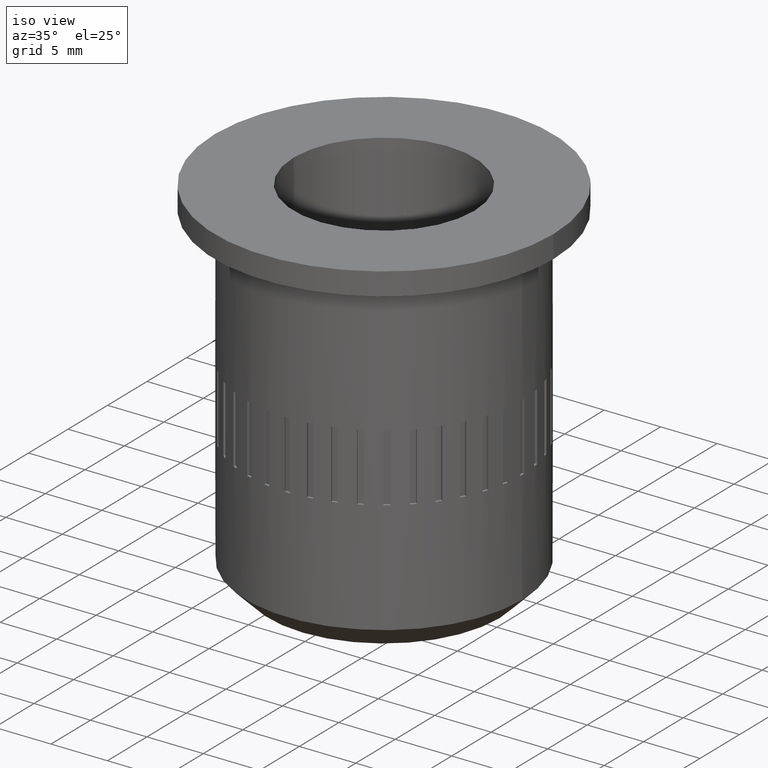
[diagram: clean part render]
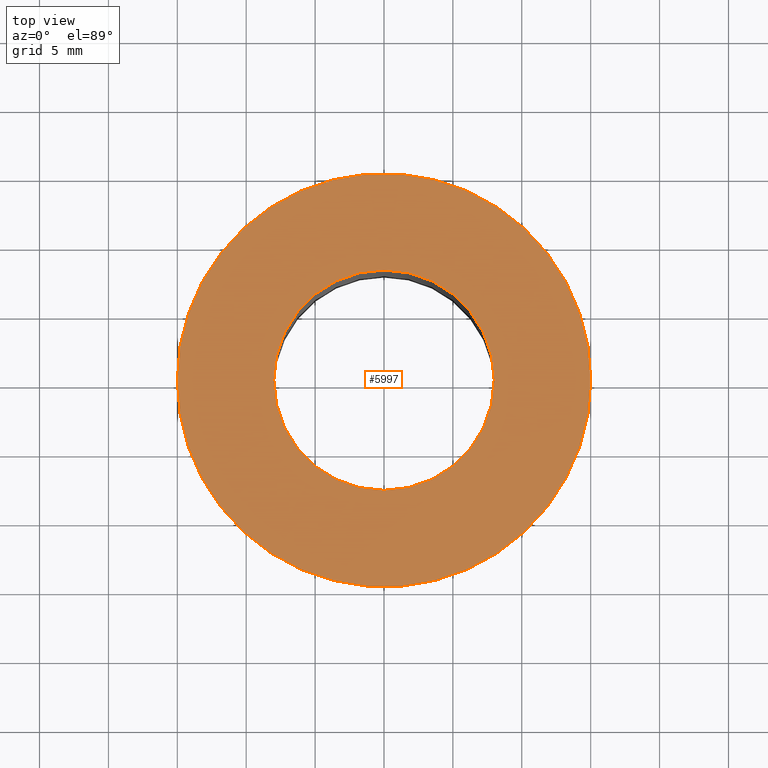
[diagram: tour spotlight — one face highlighted and labeled with its STEP entity id]
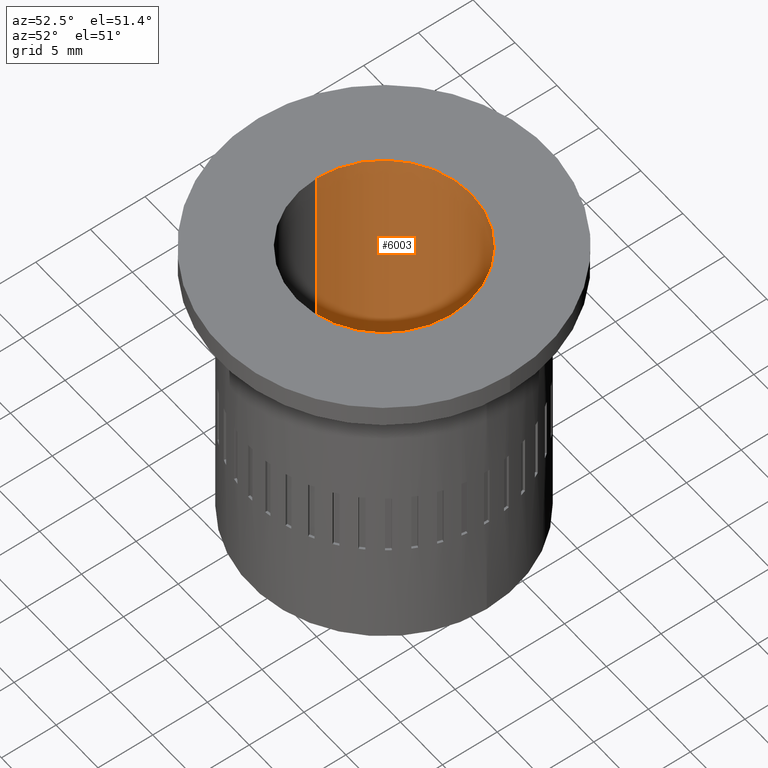
[diagram: tour spotlight — one face highlighted and labeled with its STEP entity id]
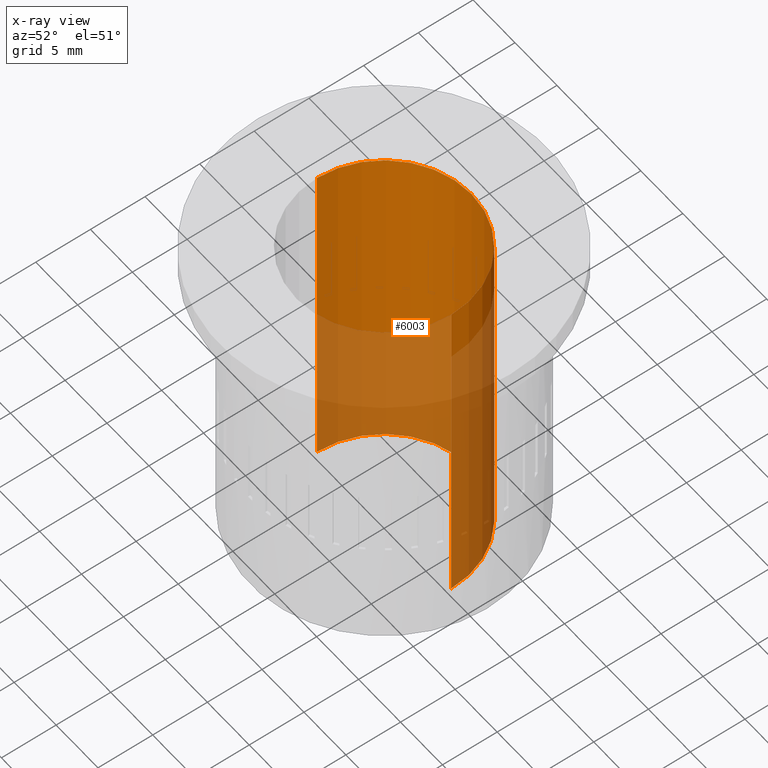
[diagram: x-ray of the same camera — body ghosted, this tour face saturated]
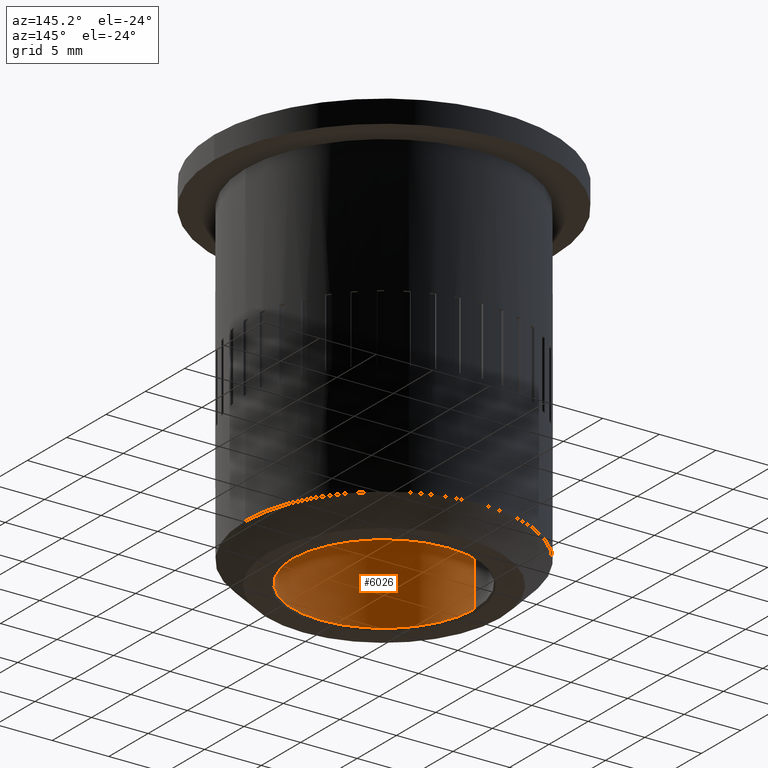
[diagram: tour spotlight — one face highlighted and labeled with its STEP entity id]
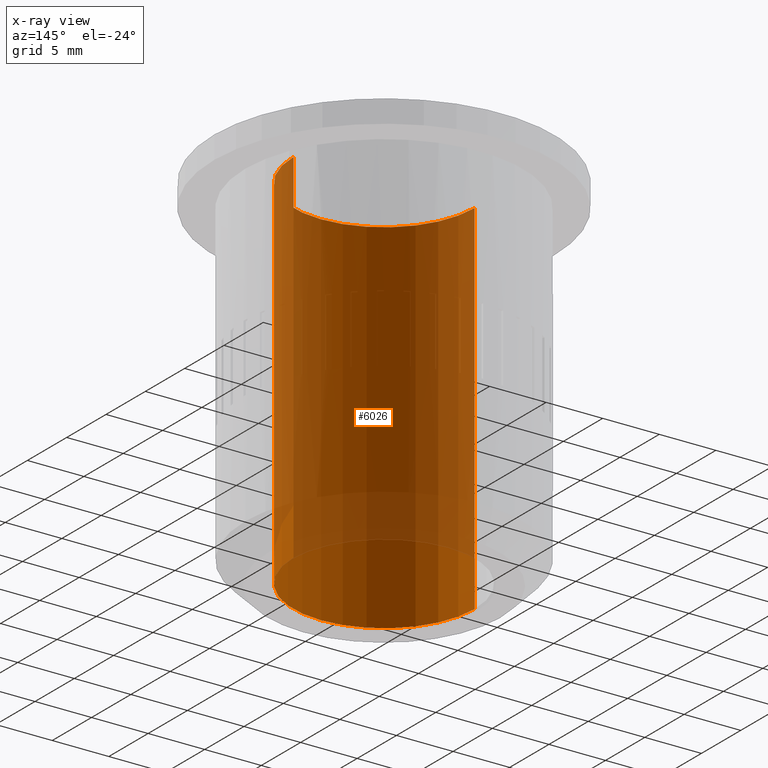
[diagram: x-ray of the same camera — body ghosted, this tour face saturated]
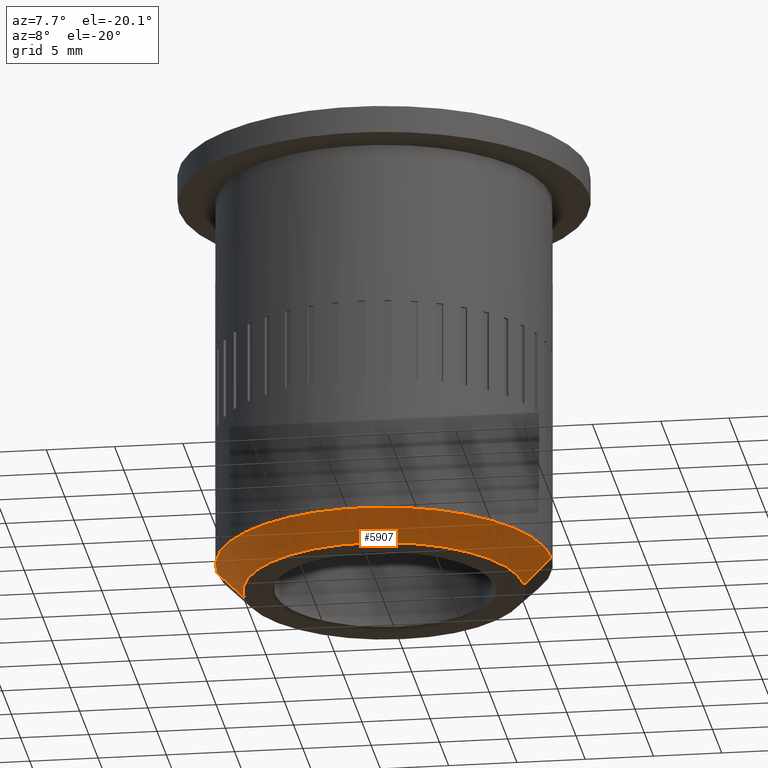
[diagram: tour spotlight — one face highlighted and labeled with its STEP entity id]
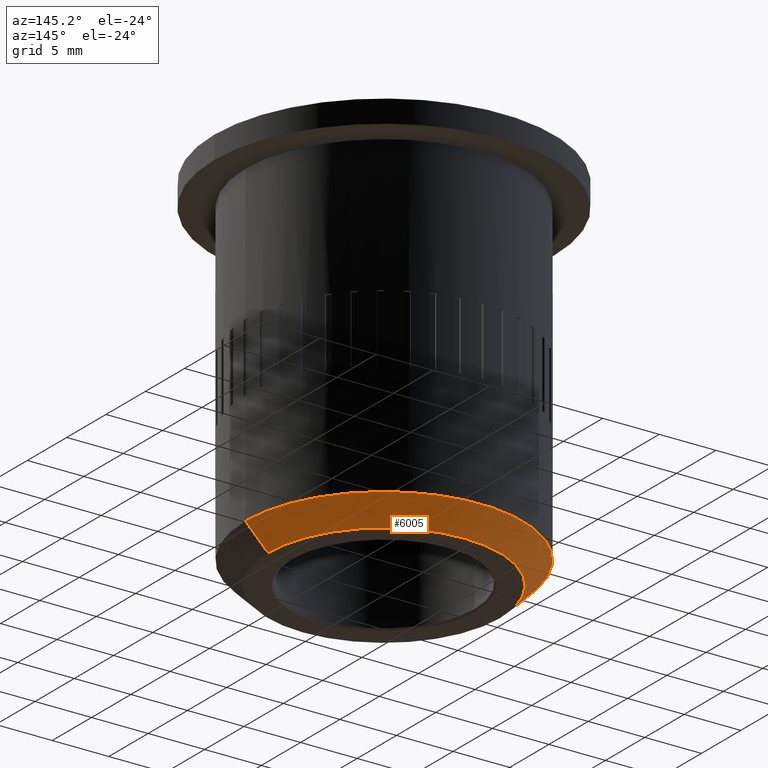
[diagram: tour spotlight — one face highlighted and labeled with its STEP entity id]
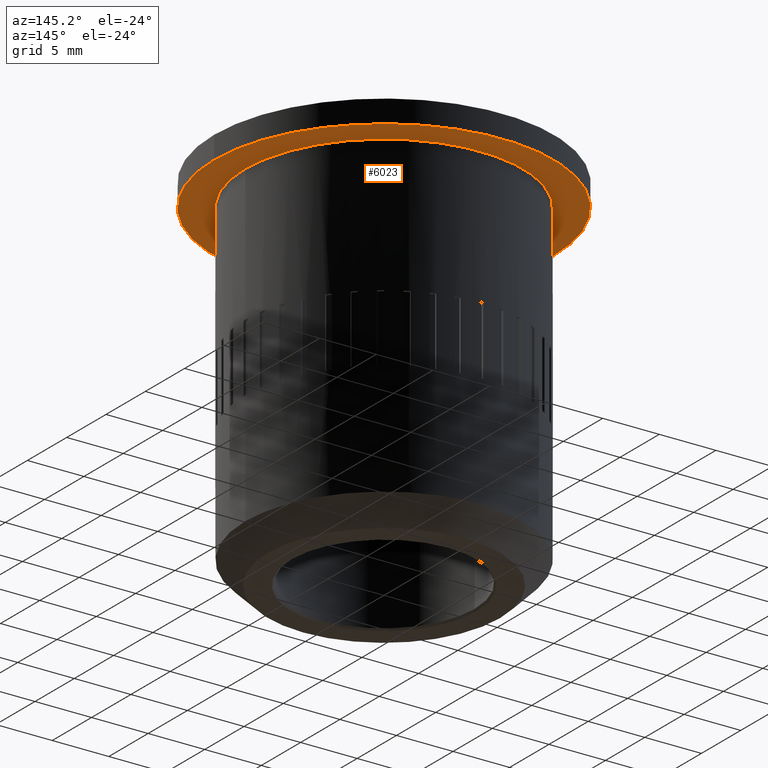
[diagram: tour spotlight — one face highlighted and labeled with its STEP entity id]
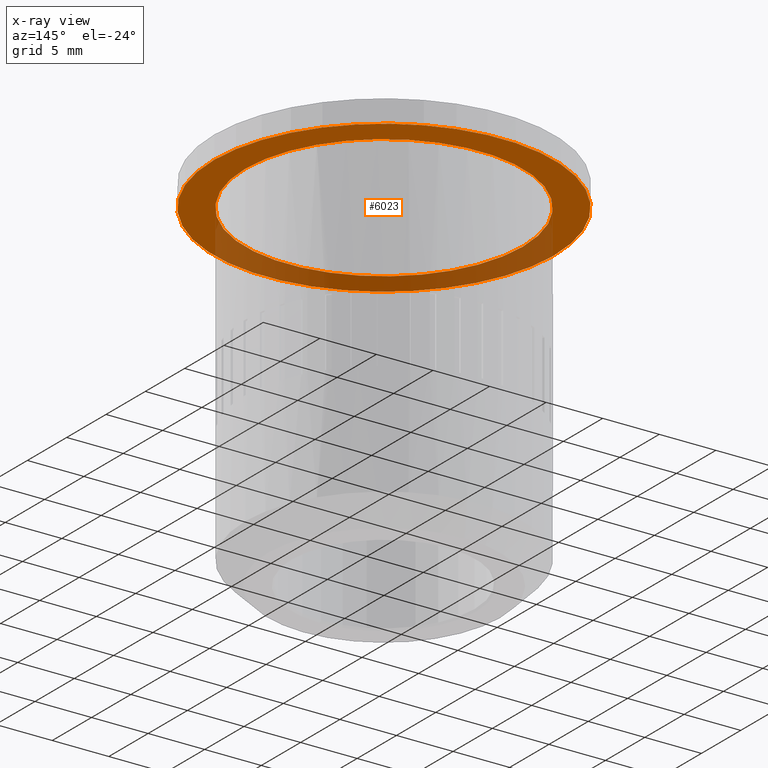
[diagram: x-ray of the same camera — body ghosted, this tour face saturated]
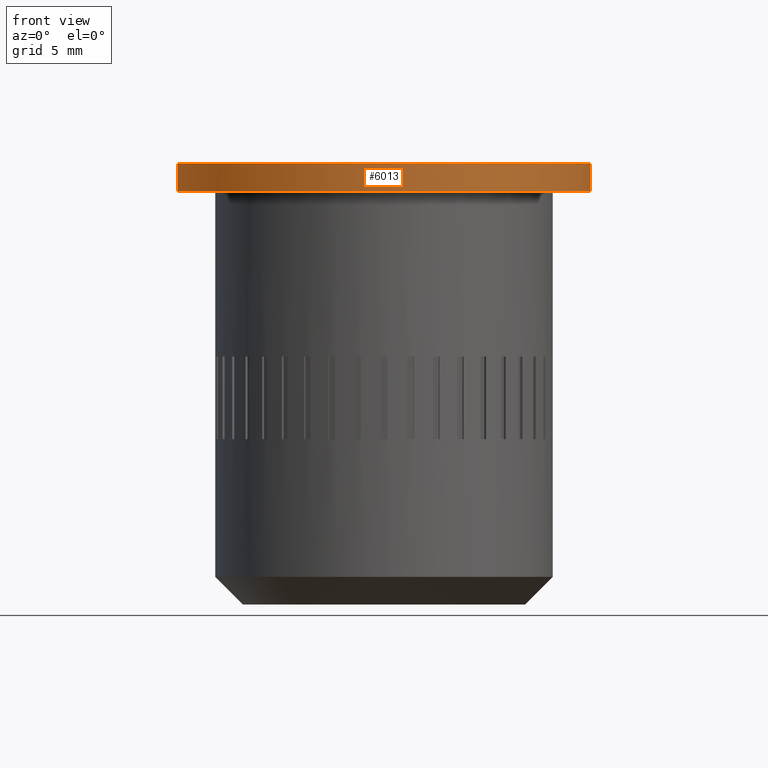
[diagram: tour spotlight — one face highlighted and labeled with its STEP entity id]
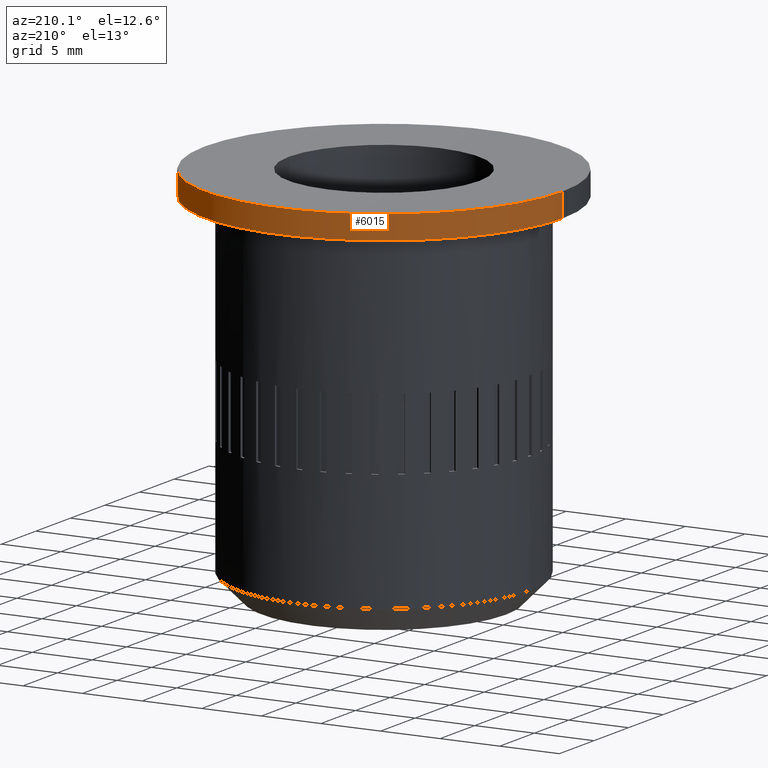
[diagram: tour spotlight — one face highlighted and labeled with its STEP entity id]
A machine part: a face-by-face anatomy tour. The part has 213 B-rep faces; the first image is the clean iso view, then the 8 largest visible faces are spotlighted one at a time (largest first), each with its STEP entity span.

Face 1 — top view, entity #5997. In plain terms, the highlighted planar face has unit normal (0, 0, 1).
Definition (entity closure, byte-faithful):
#10 = EDGE_LOOP ( 'NONE', ( #4042, #4032 ) ) ;
#11 = EDGE_LOOP ( 'NONE', ( #4058, #4044 ) ) ;
#129 = VERTEX_POINT ( 'NONE', #5413 ) ;
#225 = VERTEX_POINT ( 'NONE', #2300 ) ;
#232 = VERTEX_POINT ( 'NONE', #1229 ) ;
#234 = VERTEX_POINT ( 'NONE', #1225 ) ;
#733 = PLANE ( 'NONE',  #3298 ) ;
#734 = CARTESIAN_POINT ( 'NONE',  ( 0.0000000000000000000, 0.0000000000000000000, 32.00000000000000000 ) ) ;
#735 = DIRECTION ( 'NONE',  ( 0.0000000000000000000, 0.0000000000000000000, 1.000000000000000000 ) ) ;
#736 = DIRECTION ( 'NONE',  ( 1.000000000000000000, 0.0000000000000000000, -0.0000000000000000000 ) ) ;
#1225 = CARTESIAN_POINT ( 'NONE',  ( 8.000000000000000000, 9.797174393178825700E-016, 32.00000000000000000 ) ) ;
#1229 = CARTESIAN_POINT ( 'NONE',  ( 15.00000000000000000, 1.836970198721029600E-015, 32.00000000000000000 ) ) ;
#1317 = EDGE_CURVE ( 'NONE', #129, #232, #4931, .T. ) ;
#1532 = CARTESIAN_POINT ( 'NONE',  ( 0.0000000000000000000, 0.0000000000000000000, 32.00000000000000000 ) ) ;
#1533 = DIRECTION ( 'NONE',  ( 0.0000000000000000000, 0.0000000000000000000, -1.000000000000000000 ) ) ;
#1534 = DIRECTION ( 'NONE',  ( -1.000000000000000000, 0.0000000000000000000, 0.0000000000000000000 ) ) ;
#2014 = CIRCLE ( 'NONE', #2777, 8.000000000000000000 ) ;
#2300 = CARTESIAN_POINT ( 'NONE',  ( -8.000000000000000000, 0.0000000000000000000, 32.00000000000000000 ) ) ;
#2452 = CIRCLE ( 'NONE', #2760, 15.00000000000000000 ) ;
#2616 = EDGE_CURVE ( 'NONE', #234, #225, #4815, .T. ) ;
#2658 = EDGE_CURVE ( 'NONE', #232, #129, #2452, .T. ) ;
#2708 = AXIS2_PLACEMENT_3D ( 'NONE', #5165, #5166, #5167 ) ;
#2738 = AXIS2_PLACEMENT_3D ( 'NONE', #5721, #5722, #5723 ) ;
#2760 = AXIS2_PLACEMENT_3D ( 'NONE', #5292, #5293, #5294 ) ;
#2777 = AXIS2_PLACEMENT_3D ( 'NONE', #1532, #1533, #1534 ) ;
#3159 = FACE_BOUND ( 'NONE', #11, .T. ) ;
#3160 = FACE_OUTER_BOUND ( 'NONE', #10, .T. ) ;
#3298 = AXIS2_PLACEMENT_3D ( 'NONE', #734, #735, #736 ) ;
#4032 = ORIENTED_EDGE ( 'NONE', *, *, #2658, .T. ) ;
#4042 = ORIENTED_EDGE ( 'NONE', *, *, #1317, .T. ) ;
#4044 = ORIENTED_EDGE ( 'NONE', *, *, #2616, .T. ) ;
#4058 = ORIENTED_EDGE ( 'NONE', *, *, #5017, .T. ) ;
#4815 = CIRCLE ( 'NONE', #2738, 8.000000000000000000 ) ;
#4931 = CIRCLE ( 'NONE', #2708, 15.00000000000000000 ) ;
#5017 = EDGE_CURVE ( 'NONE', #225, #234, #2014, .T. ) ;
#5165 = CARTESIAN_POINT ( 'NONE',  ( 0.0000000000000000000, 0.0000000000000000000, 32.00000000000000000 ) ) ;
#5166 = DIRECTION ( 'NONE',  ( 0.0000000000000000000, 0.0000000000000000000, 1.000000000000000000 ) ) ;
#5167 = DIRECTION ( 'NONE',  ( 1.000000000000000000, 0.0000000000000000000, 0.0000000000000000000 ) ) ;
#5292 = CARTESIAN_POINT ( 'NONE',  ( 0.0000000000000000000, 0.0000000000000000000, 32.00000000000000000 ) ) ;
#5293 = DIRECTION ( 'NONE',  ( 0.0000000000000000000, 0.0000000000000000000, 1.000000000000000000 ) ) ;
#5294 = DIRECTION ( 'NONE',  ( 1.000000000000000000, 0.0000000000000000000, 0.0000000000000000000 ) ) ;
#5413 = CARTESIAN_POINT ( 'NONE',  ( -15.00000000000000000, 0.0000000000000000000, 32.00000000000000000 ) ) ;
#5721 = CARTESIAN_POINT ( 'NONE',  ( 0.0000000000000000000, 0.0000000000000000000, 32.00000000000000000 ) ) ;
#5722 = DIRECTION ( 'NONE',  ( 0.0000000000000000000, 0.0000000000000000000, -1.000000000000000000 ) ) ;
#5723 = DIRECTION ( 'NONE',  ( -1.000000000000000000, 0.0000000000000000000, 0.0000000000000000000 ) ) ;
#5997 = ADVANCED_FACE ( 'NONE', ( #3159, #3160 ), #733, .T. ) ;

Face 2 — auxiliary view, entity #6003. An x-ray twin of the same camera follows (body ghosted, this face saturated) — the face is partly hidden behind the body. In plain terms, the highlighted cylindrical surface (partial cylindrical patch) has radius 8 mm, axis along (-0, -0, -1).
Definition (entity closure, byte-faithful):
#14 = EDGE_LOOP ( 'NONE', ( #4059, #4025, #4021, #4023 ) ) ;
#195 = VERTEX_POINT ( 'NONE', #2283 ) ;
#225 = VERTEX_POINT ( 'NONE', #2300 ) ;
#234 = VERTEX_POINT ( 'NONE', #1225 ) ;
#246 = VERTEX_POINT ( 'NONE', #1250 ) ;
#757 = CARTESIAN_POINT ( 'NONE',  ( 0.0000000000000000000, 0.0000000000000000000, 32.00000000000000000 ) ) ;
#758 = DIRECTION ( 'NONE',  ( -0.0000000000000000000, -0.0000000000000000000, -1.000000000000000000 ) ) ;
#759 = DIRECTION ( 'NONE',  ( -1.000000000000000000, 0.0000000000000000000, 0.0000000000000000000 ) ) ;
#1225 = CARTESIAN_POINT ( 'NONE',  ( 8.000000000000000000, 9.797174393178825700E-016, 32.00000000000000000 ) ) ;
#1250 = CARTESIAN_POINT ( 'NONE',  ( 8.000000000000000000, 9.797174393178825700E-016, 0.1499999999999973600 ) ) ;
#1333 = EDGE_CURVE ( 'NONE', #195, #246, #4962, .T. ) ;
#1532 = CARTESIAN_POINT ( 'NONE',  ( 0.0000000000000000000, 0.0000000000000000000, 32.00000000000000000 ) ) ;
#1533 = DIRECTION ( 'NONE',  ( 0.0000000000000000000, 0.0000000000000000000, -1.000000000000000000 ) ) ;
#1534 = DIRECTION ( 'NONE',  ( -1.000000000000000000, 0.0000000000000000000, 0.0000000000000000000 ) ) ;
#2014 = CIRCLE ( 'NONE', #2777, 8.000000000000000000 ) ;
#2283 = CARTESIAN_POINT ( 'NONE',  ( -8.000000000000000000, 0.0000000000000000000, 0.1499999999999973600 ) ) ;
#2300 = CARTESIAN_POINT ( 'NONE',  ( -8.000000000000000000, 0.0000000000000000000, 32.00000000000000000 ) ) ;
#2440 = LINE ( 'NONE', #5810, #2441 ) ;
#2441 = VECTOR ( 'NONE', #5811, 1000.000000000000000 ) ;
#2454 = LINE ( 'NONE', #5297, #2455 ) ;
#2455 = VECTOR ( 'NONE', #5298, 1000.000000000000000 ) ;
#2651 = EDGE_CURVE ( 'NONE', #234, #246, #2440, .T. ) ;
#2660 = EDGE_CURVE ( 'NONE', #225, #195, #2454, .T. ) ;
#2709 = AXIS2_PLACEMENT_3D ( 'NONE', #5198, #5199, #5200 ) ;
#2777 = AXIS2_PLACEMENT_3D ( 'NONE', #1532, #1533, #1534 ) ;
#3166 = FACE_OUTER_BOUND ( 'NONE', #14, .T. ) ;
#3167 = CYLINDRICAL_SURFACE ( 'NONE', #3304, 8.000000000000000000 ) ;
#3304 = AXIS2_PLACEMENT_3D ( 'NONE', #757, #758, #759 ) ;
#4021 = ORIENTED_EDGE ( 'NONE', *, *, #2660, .T. ) ;
#4023 = ORIENTED_EDGE ( 'NONE', *, *, #1333, .T. ) ;
#4025 = ORIENTED_EDGE ( 'NONE', *, *, #5017, .F. ) ;
#4059 = ORIENTED_EDGE ( 'NONE', *, *, #2651, .F. ) ;
#4962 = CIRCLE ( 'NONE', #2709, 8.000000000000000000 ) ;
#5017 = EDGE_CURVE ( 'NONE', #225, #234, #2014, .T. ) ;
#5198 = CARTESIAN_POINT ( 'NONE',  ( 0.0000000000000000000, 0.0000000000000000000, 0.1499999999999973600 ) ) ;
#5199 = DIRECTION ( 'NONE',  ( 0.0000000000000000000, 0.0000000000000000000, -1.000000000000000000 ) ) ;
#5200 = DIRECTION ( 'NONE',  ( 1.000000000000000000, 0.0000000000000000000, 0.0000000000000000000 ) ) ;
#5297 = CARTESIAN_POINT ( 'NONE',  ( -8.000000000000000000, 0.0000000000000000000, 32.00000000000000000 ) ) ;
#5298 = DIRECTION ( 'NONE',  ( -0.0000000000000000000, -0.0000000000000000000, -1.000000000000000000 ) ) ;
#5810 = CARTESIAN_POINT ( 'NONE',  ( 8.000000000000000000, 9.797174393178825700E-016, 32.00000000000000000 ) ) ;
#5811 = DIRECTION ( 'NONE',  ( -0.0000000000000000000, -0.0000000000000000000, -1.000000000000000000 ) ) ;
#6003 = ADVANCED_FACE ( 'NONE', ( #3166 ), #3167, .F. ) ;

Face 3 — auxiliary view, entity #6026. An x-ray twin of the same camera follows (body ghosted, this face saturated) — the face is partly hidden behind the body. In plain terms, the highlighted cylindrical surface (partial cylindrical patch) has radius 8 mm, axis along (-0, -0, -1).
Definition (entity closure, byte-faithful):
#195 = VERTEX_POINT ( 'NONE', #2283 ) ;
#225 = VERTEX_POINT ( 'NONE', #2300 ) ;
#234 = VERTEX_POINT ( 'NONE', #1225 ) ;
#246 = VERTEX_POINT ( 'NONE', #1250 ) ;
#841 = CARTESIAN_POINT ( 'NONE',  ( 0.0000000000000000000, 0.0000000000000000000, 32.00000000000000000 ) ) ;
#842 = DIRECTION ( 'NONE',  ( -0.0000000000000000000, -0.0000000000000000000, -1.000000000000000000 ) ) ;
#843 = DIRECTION ( 'NONE',  ( -1.000000000000000000, 0.0000000000000000000, 0.0000000000000000000 ) ) ;
#978 = FACE_OUTER_BOUND ( 'NONE', #6073, .T. ) ;
#979 = CYLINDRICAL_SURFACE ( 'NONE', #3327, 8.000000000000000000 ) ;
#1225 = CARTESIAN_POINT ( 'NONE',  ( 8.000000000000000000, 9.797174393178825700E-016, 32.00000000000000000 ) ) ;
#1250 = CARTESIAN_POINT ( 'NONE',  ( 8.000000000000000000, 9.797174393178825700E-016, 0.1499999999999973600 ) ) ;
#2096 = CIRCLE ( 'NONE', #2769, 8.000000000000000000 ) ;
#2283 = CARTESIAN_POINT ( 'NONE',  ( -8.000000000000000000, 0.0000000000000000000, 0.1499999999999973600 ) ) ;
#2300 = CARTESIAN_POINT ( 'NONE',  ( -8.000000000000000000, 0.0000000000000000000, 32.00000000000000000 ) ) ;
#2440 = LINE ( 'NONE', #5810, #2441 ) ;
#2441 = VECTOR ( 'NONE', #5811, 1000.000000000000000 ) ;
#2454 = LINE ( 'NONE', #5297, #2455 ) ;
#2455 = VECTOR ( 'NONE', #5298, 1000.000000000000000 ) ;
#2616 = EDGE_CURVE ( 'NONE', #234, #225, #4815, .T. ) ;
#2651 = EDGE_CURVE ( 'NONE', #234, #246, #2440, .T. ) ;
#2660 = EDGE_CURVE ( 'NONE', #225, #195, #2454, .T. ) ;
#2738 = AXIS2_PLACEMENT_3D ( 'NONE', #5721, #5722, #5723 ) ;
#2769 = AXIS2_PLACEMENT_3D ( 'NONE', #6127, #6128, #6129 ) ;
#3327 = AXIS2_PLACEMENT_3D ( 'NONE', #841, #842, #843 ) ;
#3489 = EDGE_CURVE ( 'NONE', #246, #195, #2096, .T. ) ;
#4295 = ORIENTED_EDGE ( 'NONE', *, *, #2660, .F. ) ;
#4296 = ORIENTED_EDGE ( 'NONE', *, *, #3489, .T. ) ;
#4297 = ORIENTED_EDGE ( 'NONE', *, *, #2651, .T. ) ;
#4298 = ORIENTED_EDGE ( 'NONE', *, *, #2616, .F. ) ;
#4815 = CIRCLE ( 'NONE', #2738, 8.000000000000000000 ) ;
#5297 = CARTESIAN_POINT ( 'NONE',  ( -8.000000000000000000, 0.0000000000000000000, 32.00000000000000000 ) ) ;
#5298 = DIRECTION ( 'NONE',  ( -0.0000000000000000000, -0.0000000000000000000, -1.000000000000000000 ) ) ;
#5721 = CARTESIAN_POINT ( 'NONE',  ( 0.0000000000000000000, 0.0000000000000000000, 32.00000000000000000 ) ) ;
#5722 = DIRECTION ( 'NONE',  ( 0.0000000000000000000, 0.0000000000000000000, -1.000000000000000000 ) ) ;
#5723 = DIRECTION ( 'NONE',  ( -1.000000000000000000, 0.0000000000000000000, 0.0000000000000000000 ) ) ;
#5810 = CARTESIAN_POINT ( 'NONE',  ( 8.000000000000000000, 9.797174393178825700E-016, 32.00000000000000000 ) ) ;
#5811 = DIRECTION ( 'NONE',  ( -0.0000000000000000000, -0.0000000000000000000, -1.000000000000000000 ) ) ;
#6026 = ADVANCED_FACE ( 'NONE', ( #978 ), #979, .F. ) ;
#6073 = EDGE_LOOP ( 'NONE', ( #4298, #4297, #4296, #4295 ) ) ;
#6127 = CARTESIAN_POINT ( 'NONE',  ( 0.0000000000000000000, 0.0000000000000000000, 0.1499999999999973600 ) ) ;
#6128 = DIRECTION ( 'NONE',  ( 0.0000000000000000000, 0.0000000000000000000, -1.000000000000000000 ) ) ;
#6129 = DIRECTION ( 'NONE',  ( 1.000000000000000000, 0.0000000000000000000, 0.0000000000000000000 ) ) ;

Face 4 — auxiliary view, entity #5907. In plain terms, the highlighted conical surface has half-angle 45 deg.
Definition (entity closure, byte-faithful):
#163 = VERTEX_POINT ( 'NONE', #2876 ) ;
#193 = VERTEX_POINT ( 'NONE', #2277 ) ;
#222 = VERTEX_POINT ( 'NONE', #2297 ) ;
#223 = VERTEX_POINT ( 'NONE', #2288 ) ;
#932 = EDGE_CURVE ( 'NONE', #163, #223, #4832, .T. ) ;
#1180 = CARTESIAN_POINT ( 'NONE',  ( 0.0000000000000000000, 0.0000000000000000000, 1.999999999999998200 ) ) ;
#1181 = DIRECTION ( 'NONE',  ( -0.0000000000000000000, -0.0000000000000000000, 1.000000000000000000 ) ) ;
#1182 = DIRECTION ( 'NONE',  ( 1.000000000000000000, 0.0000000000000000000, 0.0000000000000000000 ) ) ;
#1491 = CARTESIAN_POINT ( 'NONE',  ( 0.0000000000000000000, 0.0000000000000000000, 0.0000000000000000000 ) ) ;
#1492 = DIRECTION ( 'NONE',  ( -0.0000000000000000000, -0.0000000000000000000, -1.000000000000000000 ) ) ;
#1493 = DIRECTION ( 'NONE',  ( 1.000000000000000000, 0.0000000000000000000, 0.0000000000000000000 ) ) ;
#2162 = CIRCLE ( 'NONE', #2774, 10.24999999999999800 ) ;
#2277 = CARTESIAN_POINT ( 'NONE',  ( -10.24999999999999800, 1.377727649040772400E-015, 0.0000000000000000000 ) ) ;
#2288 = CARTESIAN_POINT ( 'NONE',  ( 12.25000000000000000, 1.500192328955507700E-015, 1.999999999999998200 ) ) ;
#2297 = CARTESIAN_POINT ( 'NONE',  ( 10.24999999999999800, 0.0000000000000000000, 0.0000000000000000000 ) ) ;
#2614 = EDGE_CURVE ( 'NONE', #222, #223, #4810, .T. ) ;
#2615 = EDGE_CURVE ( 'NONE', #193, #163, #4813, .T. ) ;
#2696 = AXIS2_PLACEMENT_3D ( 'NONE', #1180, #1181, #1182 ) ;
#2774 = AXIS2_PLACEMENT_3D ( 'NONE', #1491, #1492, #1493 ) ;
#2876 = CARTESIAN_POINT ( 'NONE',  ( -12.25000000000000000, 0.0000000000000000000, 1.999999999999998200 ) ) ;
#3209 = AXIS2_PLACEMENT_3D ( 'NONE', #4508, #4509, #4510 ) ;
#4104 = EDGE_LOOP ( 'NONE', ( #4229, #4230, #4231, #4232 ) ) ;
#4171 = EDGE_CURVE ( 'NONE', #222, #193, #2162, .T. ) ;
#4229 = ORIENTED_EDGE ( 'NONE', *, *, #2615, .F. ) ;
#4230 = ORIENTED_EDGE ( 'NONE', *, *, #4171, .F. ) ;
#4231 = ORIENTED_EDGE ( 'NONE', *, *, #2614, .T. ) ;
#4232 = ORIENTED_EDGE ( 'NONE', *, *, #932, .F. ) ;
#4508 = CARTESIAN_POINT ( 'NONE',  ( 0.0000000000000000000, 0.0000000000000000000, 1.999999999999998200 ) ) ;
#4509 = DIRECTION ( 'NONE',  ( -0.0000000000000000000, -0.0000000000000000000, 1.000000000000000000 ) ) ;
#4510 = DIRECTION ( 'NONE',  ( 1.000000000000000000, 0.0000000000000000000, 0.0000000000000000000 ) ) ;
#4810 = LINE ( 'NONE', #5717, #4812 ) ;
#4812 = VECTOR ( 'NONE', #5718, 999.9999999999998900 ) ;
#4813 = LINE ( 'NONE', #5719, #4814 ) ;
#4814 = VECTOR ( 'NONE', #5720, 999.9999999999998900 ) ;
#4832 = CIRCLE ( 'NONE', #2696, 12.25000000000000000 ) ;
#5573 = FACE_OUTER_BOUND ( 'NONE', #4104, .T. ) ;
#5574 = CONICAL_SURFACE ( 'NONE', #3209, 12.25000000000000000, 0.7853981633974491700 ) ;
#5717 = CARTESIAN_POINT ( 'NONE',  ( 12.25000000000000000, 0.0000000000000000000, 1.999999999999998200 ) ) ;
#5718 = DIRECTION ( 'NONE',  ( 0.7071067811865482400, 0.0000000000000000000, 0.7071067811865469100 ) ) ;
#5719 = CARTESIAN_POINT ( 'NONE',  ( -12.25000000000000000, 1.500192328955507700E-015, 1.999999999999998200 ) ) ;
#5720 = DIRECTION ( 'NONE',  ( -0.7071067811865482400, 8.659560562354942700E-017, 0.7071067811865469100 ) ) ;
#5907 = ADVANCED_FACE ( 'NONE', ( #5573 ), #5574, .T. ) ;

Face 5 — auxiliary view, entity #6005. In plain terms, the highlighted conical surface has half-angle 45 deg.
Definition (entity closure, byte-faithful):
#163 = VERTEX_POINT ( 'NONE', #2876 ) ;
#193 = VERTEX_POINT ( 'NONE', #2277 ) ;
#222 = VERTEX_POINT ( 'NONE', #2297 ) ;
#223 = VERTEX_POINT ( 'NONE', #2288 ) ;
#405 = EDGE_LOOP ( 'NONE', ( #2498, #4305, #4304, #4303 ) ) ;
#542 = CARTESIAN_POINT ( 'NONE',  ( 0.0000000000000000000, 0.0000000000000000000, 1.999999999999998200 ) ) ;
#543 = DIRECTION ( 'NONE',  ( -0.0000000000000000000, -0.0000000000000000000, 1.000000000000000000 ) ) ;
#544 = DIRECTION ( 'NONE',  ( 1.000000000000000000, 0.0000000000000000000, 0.0000000000000000000 ) ) ;
#764 = CARTESIAN_POINT ( 'NONE',  ( 0.0000000000000000000, 0.0000000000000000000, 1.999999999999998200 ) ) ;
#765 = DIRECTION ( 'NONE',  ( -0.0000000000000000000, -0.0000000000000000000, 1.000000000000000000 ) ) ;
#766 = DIRECTION ( 'NONE',  ( 1.000000000000000000, 0.0000000000000000000, 0.0000000000000000000 ) ) ;
#2277 = CARTESIAN_POINT ( 'NONE',  ( -10.24999999999999800, 1.377727649040772400E-015, 0.0000000000000000000 ) ) ;
#2288 = CARTESIAN_POINT ( 'NONE',  ( 12.25000000000000000, 1.500192328955507700E-015, 1.999999999999998200 ) ) ;
#2297 = CARTESIAN_POINT ( 'NONE',  ( 10.24999999999999800, 0.0000000000000000000, 0.0000000000000000000 ) ) ;
#2428 = CIRCLE ( 'NONE', #2754, 10.24999999999999800 ) ;
#2498 = ORIENTED_EDGE ( 'NONE', *, *, #2643, .F. ) ;
#2594 = EDGE_CURVE ( 'NONE', #223, #163, #4783, .T. ) ;
#2614 = EDGE_CURVE ( 'NONE', #222, #223, #4810, .T. ) ;
#2615 = EDGE_CURVE ( 'NONE', #193, #163, #4813, .T. ) ;
#2643 = EDGE_CURVE ( 'NONE', #193, #222, #2428, .T. ) ;
#2726 = AXIS2_PLACEMENT_3D ( 'NONE', #542, #543, #544 ) ;
#2754 = AXIS2_PLACEMENT_3D ( 'NONE', #5791, #5792, #5793 ) ;
#2876 = CARTESIAN_POINT ( 'NONE',  ( -12.25000000000000000, 0.0000000000000000000, 1.999999999999998200 ) ) ;
#3169 = FACE_OUTER_BOUND ( 'NONE', #405, .T. ) ;
#3170 = CONICAL_SURFACE ( 'NONE', #3306, 12.25000000000000000, 0.7853981633974491700 ) ;
#3306 = AXIS2_PLACEMENT_3D ( 'NONE', #764, #765, #766 ) ;
#4303 = ORIENTED_EDGE ( 'NONE', *, *, #2614, .F. ) ;
#4304 = ORIENTED_EDGE ( 'NONE', *, *, #2594, .F. ) ;
#4305 = ORIENTED_EDGE ( 'NONE', *, *, #2615, .T. ) ;
#4783 = CIRCLE ( 'NONE', #2726, 12.25000000000000000 ) ;
#4810 = LINE ( 'NONE', #5717, #4812 ) ;
#4812 = VECTOR ( 'NONE', #5718, 999.9999999999998900 ) ;
#4813 = LINE ( 'NONE', #5719, #4814 ) ;
#4814 = VECTOR ( 'NONE', #5720, 999.9999999999998900 ) ;
#5717 = CARTESIAN_POINT ( 'NONE',  ( 12.25000000000000000, 0.0000000000000000000, 1.999999999999998200 ) ) ;
#5718 = DIRECTION ( 'NONE',  ( 0.7071067811865482400, 0.0000000000000000000, 0.7071067811865469100 ) ) ;
#5719 = CARTESIAN_POINT ( 'NONE',  ( -12.25000000000000000, 1.500192328955507700E-015, 1.999999999999998200 ) ) ;
#5720 = DIRECTION ( 'NONE',  ( -0.7071067811865482400, 8.659560562354942700E-017, 0.7071067811865469100 ) ) ;
#5791 = CARTESIAN_POINT ( 'NONE',  ( 0.0000000000000000000, 0.0000000000000000000, 0.0000000000000000000 ) ) ;
#5792 = DIRECTION ( 'NONE',  ( -0.0000000000000000000, -0.0000000000000000000, -1.000000000000000000 ) ) ;
#5793 = DIRECTION ( 'NONE',  ( 1.000000000000000000, 0.0000000000000000000, 0.0000000000000000000 ) ) ;
#6005 = ADVANCED_FACE ( 'NONE', ( #3169 ), #3170, .T. ) ;

Face 6 — auxiliary view, entity #6023. An x-ray twin of the same camera follows (body ghosted, this face saturated) — the face is partly hidden behind the body. In plain terms, the highlighted planar face has unit normal (0, 0, 1).
Definition (entity closure, byte-faithful):
#122 = EDGE_LOOP ( 'NONE', ( #4016, #4018 ) ) ;
#184 = VERTEX_POINT ( 'NONE', #2272 ) ;
#209 = VERTEX_POINT ( 'NONE', #2298 ) ;
#260 = VERTEX_POINT ( 'NONE', #1240 ) ;
#267 = VERTEX_POINT ( 'NONE', #1208 ) ;
#831 = PLANE ( 'NONE',  #3324 ) ;
#832 = CARTESIAN_POINT ( 'NONE',  ( 0.0000000000000000000, 0.0000000000000000000, 30.00000000000000000 ) ) ;
#833 = DIRECTION ( 'NONE',  ( 0.0000000000000000000, 0.0000000000000000000, 1.000000000000000000 ) ) ;
#834 = DIRECTION ( 'NONE',  ( 1.000000000000000000, 0.0000000000000000000, -0.0000000000000000000 ) ) ;
#931 = EDGE_CURVE ( 'NONE', #184, #209, #4831, .T. ) ;
#935 = EDGE_LOOP ( 'NONE', ( #4020, #4022 ) ) ;
#953 = FACE_OUTER_BOUND ( 'NONE', #122, .T. ) ;
#954 = FACE_BOUND ( 'NONE', #935, .T. ) ;
#1177 = CARTESIAN_POINT ( 'NONE',  ( 0.0000000000000000000, 0.0000000000000000000, 30.00000000000000000 ) ) ;
#1178 = DIRECTION ( 'NONE',  ( 0.0000000000000000000, 0.0000000000000000000, 1.000000000000000000 ) ) ;
#1179 = DIRECTION ( 'NONE',  ( 1.000000000000000000, 0.0000000000000000000, 0.0000000000000000000 ) ) ;
#1208 = CARTESIAN_POINT ( 'NONE',  ( -12.25000000000000000, 0.0000000000000000000, 30.00000000000000000 ) ) ;
#1240 = CARTESIAN_POINT ( 'NONE',  ( 12.25000000000000000, 1.500192328955507700E-015, 30.00000000000000000 ) ) ;
#2248 = CARTESIAN_POINT ( 'NONE',  ( 0.0000000000000000000, 0.0000000000000000000, 30.00000000000000000 ) ) ;
#2249 = DIRECTION ( 'NONE',  ( 0.0000000000000000000, 0.0000000000000000000, 1.000000000000000000 ) ) ;
#2250 = DIRECTION ( 'NONE',  ( 1.000000000000000000, 0.0000000000000000000, 0.0000000000000000000 ) ) ;
#2272 = CARTESIAN_POINT ( 'NONE',  ( 15.00000000000000000, 1.836970198721029600E-015, 30.00000000000000000 ) ) ;
#2298 = CARTESIAN_POINT ( 'NONE',  ( -15.00000000000000000, 0.0000000000000000000, 30.00000000000000000 ) ) ;
#2403 = CIRCLE ( 'NONE', #2745, 12.25000000000000000 ) ;
#2600 = EDGE_CURVE ( 'NONE', #260, #267, #4793, .T. ) ;
#2626 = EDGE_CURVE ( 'NONE', #267, #260, #2403, .T. ) ;
#2695 = AXIS2_PLACEMENT_3D ( 'NONE', #1177, #1178, #1179 ) ;
#2728 = AXIS2_PLACEMENT_3D ( 'NONE', #5679, #5680, #5681 ) ;
#2745 = AXIS2_PLACEMENT_3D ( 'NONE', #5748, #5749, #5750 ) ;
#2775 = AXIS2_PLACEMENT_3D ( 'NONE', #2248, #2249, #2250 ) ;
#3324 = AXIS2_PLACEMENT_3D ( 'NONE', #832, #833, #834 ) ;
#4016 = ORIENTED_EDGE ( 'NONE', *, *, #4996, .F. ) ;
#4018 = ORIENTED_EDGE ( 'NONE', *, *, #931, .F. ) ;
#4020 = ORIENTED_EDGE ( 'NONE', *, *, #2626, .T. ) ;
#4022 = ORIENTED_EDGE ( 'NONE', *, *, #2600, .T. ) ;
#4793 = CIRCLE ( 'NONE', #2728, 12.25000000000000000 ) ;
#4831 = CIRCLE ( 'NONE', #2695, 15.00000000000000000 ) ;
#4996 = EDGE_CURVE ( 'NONE', #209, #184, #5500, .T. ) ;
#5500 = CIRCLE ( 'NONE', #2775, 15.00000000000000000 ) ;
#5679 = CARTESIAN_POINT ( 'NONE',  ( 0.0000000000000000000, 0.0000000000000000000, 30.00000000000000000 ) ) ;
#5680 = DIRECTION ( 'NONE',  ( 0.0000000000000000000, 0.0000000000000000000, 1.000000000000000000 ) ) ;
#5681 = DIRECTION ( 'NONE',  ( 1.000000000000000000, 0.0000000000000000000, 0.0000000000000000000 ) ) ;
#5748 = CARTESIAN_POINT ( 'NONE',  ( 0.0000000000000000000, 0.0000000000000000000, 30.00000000000000000 ) ) ;
#5749 = DIRECTION ( 'NONE',  ( 0.0000000000000000000, 0.0000000000000000000, 1.000000000000000000 ) ) ;
#5750 = DIRECTION ( 'NONE',  ( 1.000000000000000000, 0.0000000000000000000, 0.0000000000000000000 ) ) ;
#6023 = ADVANCED_FACE ( 'NONE', ( #953, #954 ), #831, .F. ) ;

Face 7 — front view, entity #6013. In plain terms, the highlighted cylindrical surface (partial cylindrical patch) has radius 15 mm, axis along (-0, -0, -1).
Definition (entity closure, byte-faithful):
#17 = EDGE_CURVE ( 'NONE', #129, #209, #5224, .T. ) ;
#129 = VERTEX_POINT ( 'NONE', #5413 ) ;
#184 = VERTEX_POINT ( 'NONE', #2272 ) ;
#209 = VERTEX_POINT ( 'NONE', #2298 ) ;
#232 = VERTEX_POINT ( 'NONE', #1229 ) ;
#795 = CARTESIAN_POINT ( 'NONE',  ( 0.0000000000000000000, 0.0000000000000000000, 32.00000000000000000 ) ) ;
#796 = DIRECTION ( 'NONE',  ( -0.0000000000000000000, -0.0000000000000000000, -1.000000000000000000 ) ) ;
#797 = DIRECTION ( 'NONE',  ( -1.000000000000000000, 0.0000000000000000000, 0.0000000000000000000 ) ) ;
#936 = EDGE_LOOP ( 'NONE', ( #4024, #4026, #4030, #4028 ) ) ;
#1229 = CARTESIAN_POINT ( 'NONE',  ( 15.00000000000000000, 1.836970198721029600E-015, 32.00000000000000000 ) ) ;
#1317 = EDGE_CURVE ( 'NONE', #129, #232, #4931, .T. ) ;
#2248 = CARTESIAN_POINT ( 'NONE',  ( 0.0000000000000000000, 0.0000000000000000000, 30.00000000000000000 ) ) ;
#2249 = DIRECTION ( 'NONE',  ( 0.0000000000000000000, 0.0000000000000000000, 1.000000000000000000 ) ) ;
#2250 = DIRECTION ( 'NONE',  ( 1.000000000000000000, 0.0000000000000000000, 0.0000000000000000000 ) ) ;
#2272 = CARTESIAN_POINT ( 'NONE',  ( 15.00000000000000000, 1.836970198721029600E-015, 30.00000000000000000 ) ) ;
#2298 = CARTESIAN_POINT ( 'NONE',  ( -15.00000000000000000, 0.0000000000000000000, 30.00000000000000000 ) ) ;
#2448 = LINE ( 'NONE', #5290, #2450 ) ;
#2450 = VECTOR ( 'NONE', #5291, 1000.000000000000000 ) ;
#2657 = EDGE_CURVE ( 'NONE', #232, #184, #2448, .T. ) ;
#2708 = AXIS2_PLACEMENT_3D ( 'NONE', #5165, #5166, #5167 ) ;
#2775 = AXIS2_PLACEMENT_3D ( 'NONE', #2248, #2249, #2250 ) ;
#3179 = FACE_OUTER_BOUND ( 'NONE', #936, .T. ) ;
#3180 = CYLINDRICAL_SURFACE ( 'NONE', #3314, 15.00000000000000000 ) ;
#3314 = AXIS2_PLACEMENT_3D ( 'NONE', #795, #796, #797 ) ;
#4024 = ORIENTED_EDGE ( 'NONE', *, *, #2657, .F. ) ;
#4026 = ORIENTED_EDGE ( 'NONE', *, *, #1317, .F. ) ;
#4028 = ORIENTED_EDGE ( 'NONE', *, *, #4996, .T. ) ;
#4030 = ORIENTED_EDGE ( 'NONE', *, *, #17, .T. ) ;
#4931 = CIRCLE ( 'NONE', #2708, 15.00000000000000000 ) ;
#4996 = EDGE_CURVE ( 'NONE', #209, #184, #5500, .T. ) ;
#5165 = CARTESIAN_POINT ( 'NONE',  ( 0.0000000000000000000, 0.0000000000000000000, 32.00000000000000000 ) ) ;
#5166 = DIRECTION ( 'NONE',  ( 0.0000000000000000000, 0.0000000000000000000, 1.000000000000000000 ) ) ;
#5167 = DIRECTION ( 'NONE',  ( 1.000000000000000000, 0.0000000000000000000, 0.0000000000000000000 ) ) ;
#5224 = LINE ( 'NONE', #5446, #5225 ) ;
#5225 = VECTOR ( 'NONE', #5445, 1000.000000000000000 ) ;
#5290 = CARTESIAN_POINT ( 'NONE',  ( 15.00000000000000000, 1.836970198721029600E-015, 32.00000000000000000 ) ) ;
#5291 = DIRECTION ( 'NONE',  ( -0.0000000000000000000, -0.0000000000000000000, -1.000000000000000000 ) ) ;
#5413 = CARTESIAN_POINT ( 'NONE',  ( -15.00000000000000000, 0.0000000000000000000, 32.00000000000000000 ) ) ;
#5445 = DIRECTION ( 'NONE',  ( -0.0000000000000000000, -0.0000000000000000000, -1.000000000000000000 ) ) ;
#5446 = CARTESIAN_POINT ( 'NONE',  ( -15.00000000000000000, 0.0000000000000000000, 32.00000000000000000 ) ) ;
#5500 = CIRCLE ( 'NONE', #2775, 15.00000000000000000 ) ;
#6013 = ADVANCED_FACE ( 'NONE', ( #3179 ), #3180, .T. ) ;

Face 8 — auxiliary view, entity #6015. In plain terms, the highlighted cylindrical surface (partial cylindrical patch) has radius 15 mm, axis along (-0, -0, -1).
Definition (entity closure, byte-faithful):
#17 = EDGE_CURVE ( 'NONE', #129, #209, #5224, .T. ) ;
#129 = VERTEX_POINT ( 'NONE', #5413 ) ;
#184 = VERTEX_POINT ( 'NONE', #2272 ) ;
#209 = VERTEX_POINT ( 'NONE', #2298 ) ;
#232 = VERTEX_POINT ( 'NONE', #1229 ) ;
#409 = EDGE_LOOP ( 'NONE', ( #4344, #3518, #3527, #3529 ) ) ;
#802 = CARTESIAN_POINT ( 'NONE',  ( 0.0000000000000000000, 0.0000000000000000000, 32.00000000000000000 ) ) ;
#803 = DIRECTION ( 'NONE',  ( -0.0000000000000000000, -0.0000000000000000000, -1.000000000000000000 ) ) ;
#804 = DIRECTION ( 'NONE',  ( -1.000000000000000000, 0.0000000000000000000, 0.0000000000000000000 ) ) ;
#931 = EDGE_CURVE ( 'NONE', #184, #209, #4831, .T. ) ;
#1177 = CARTESIAN_POINT ( 'NONE',  ( 0.0000000000000000000, 0.0000000000000000000, 30.00000000000000000 ) ) ;
#1178 = DIRECTION ( 'NONE',  ( 0.0000000000000000000, 0.0000000000000000000, 1.000000000000000000 ) ) ;
#1179 = DIRECTION ( 'NONE',  ( 1.000000000000000000, 0.0000000000000000000, 0.0000000000000000000 ) ) ;
#1229 = CARTESIAN_POINT ( 'NONE',  ( 15.00000000000000000, 1.836970198721029600E-015, 32.00000000000000000 ) ) ;
#2272 = CARTESIAN_POINT ( 'NONE',  ( 15.00000000000000000, 1.836970198721029600E-015, 30.00000000000000000 ) ) ;
#2298 = CARTESIAN_POINT ( 'NONE',  ( -15.00000000000000000, 0.0000000000000000000, 30.00000000000000000 ) ) ;
#2448 = LINE ( 'NONE', #5290, #2450 ) ;
#2450 = VECTOR ( 'NONE', #5291, 1000.000000000000000 ) ;
#2452 = CIRCLE ( 'NONE', #2760, 15.00000000000000000 ) ;
#2657 = EDGE_CURVE ( 'NONE', #232, #184, #2448, .T. ) ;
#2658 = EDGE_CURVE ( 'NONE', #232, #129, #2452, .T. ) ;
#2695 = AXIS2_PLACEMENT_3D ( 'NONE', #1177, #1178, #1179 ) ;
#2760 = AXIS2_PLACEMENT_3D ( 'NONE', #5292, #5293, #5294 ) ;
#3182 = FACE_OUTER_BOUND ( 'NONE', #409, .T. ) ;
#3183 = CYLINDRICAL_SURFACE ( 'NONE', #3316, 15.00000000000000000 ) ;
#3316 = AXIS2_PLACEMENT_3D ( 'NONE', #802, #803, #804 ) ;
#3518 = ORIENTED_EDGE ( 'NONE', *, *, #2657, .T. ) ;
#3527 = ORIENTED_EDGE ( 'NONE', *, *, #931, .T. ) ;
#3529 = ORIENTED_EDGE ( 'NONE', *, *, #17, .F. ) ;
#4344 = ORIENTED_EDGE ( 'NONE', *, *, #2658, .F. ) ;
#4831 = CIRCLE ( 'NONE', #2695, 15.00000000000000000 ) ;
#5224 = LINE ( 'NONE', #5446, #5225 ) ;
#5225 = VECTOR ( 'NONE', #5445, 1000.000000000000000 ) ;
#5290 = CARTESIAN_POINT ( 'NONE',  ( 15.00000000000000000, 1.836970198721029600E-015, 32.00000000000000000 ) ) ;
#5291 = DIRECTION ( 'NONE',  ( -0.0000000000000000000, -0.0000000000000000000, -1.000000000000000000 ) ) ;
#5292 = CARTESIAN_POINT ( 'NONE',  ( 0.0000000000000000000, 0.0000000000000000000, 32.00000000000000000 ) ) ;
#5293 = DIRECTION ( 'NONE',  ( 0.0000000000000000000, 0.0000000000000000000, 1.000000000000000000 ) ) ;
#5294 = DIRECTION ( 'NONE',  ( 1.000000000000000000, 0.0000000000000000000, 0.0000000000000000000 ) ) ;
#5413 = CARTESIAN_POINT ( 'NONE',  ( -15.00000000000000000, 0.0000000000000000000, 32.00000000000000000 ) ) ;
#5445 = DIRECTION ( 'NONE',  ( -0.0000000000000000000, -0.0000000000000000000, -1.000000000000000000 ) ) ;
#5446 = CARTESIAN_POINT ( 'NONE',  ( -15.00000000000000000, 0.0000000000000000000, 32.00000000000000000 ) ) ;
#6015 = ADVANCED_FACE ( 'NONE', ( #3182 ), #3183, .T. ) ;